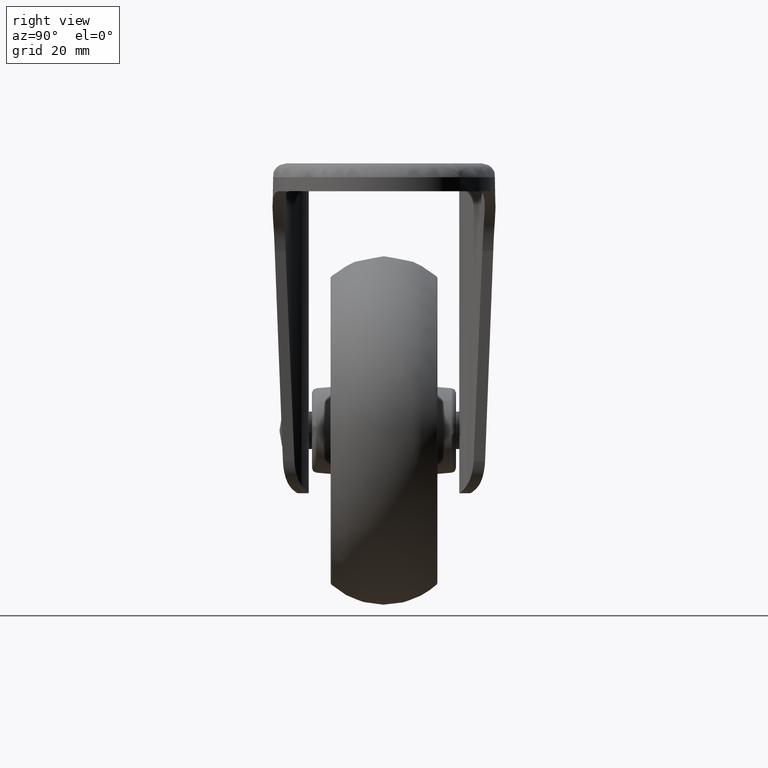
[diagram: clean part render]
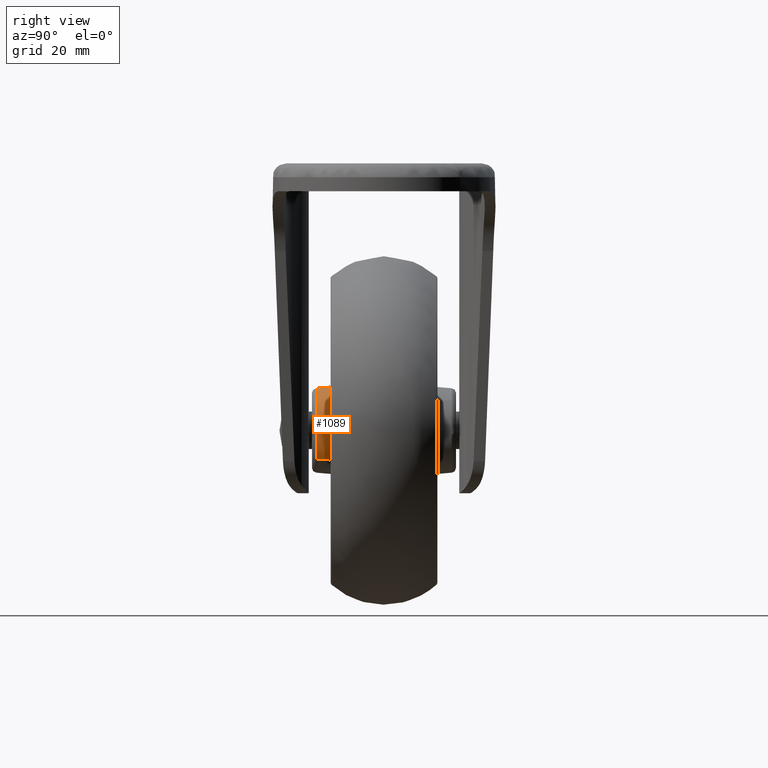
[diagram: same view with one face highlighted and labeled with its STEP entity id]
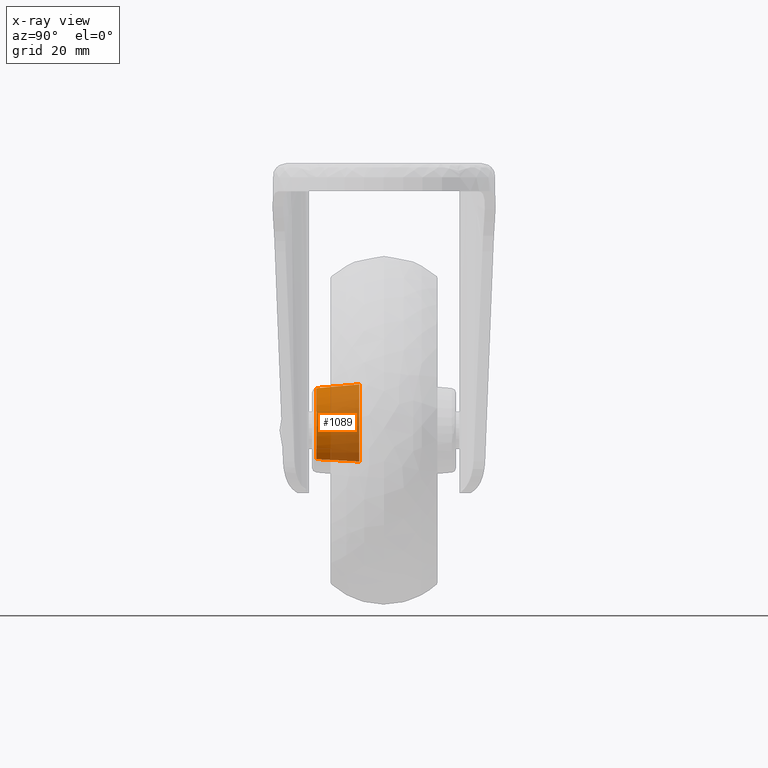
[diagram: x-ray of the same camera — body ghosted, the highlighted face saturated]
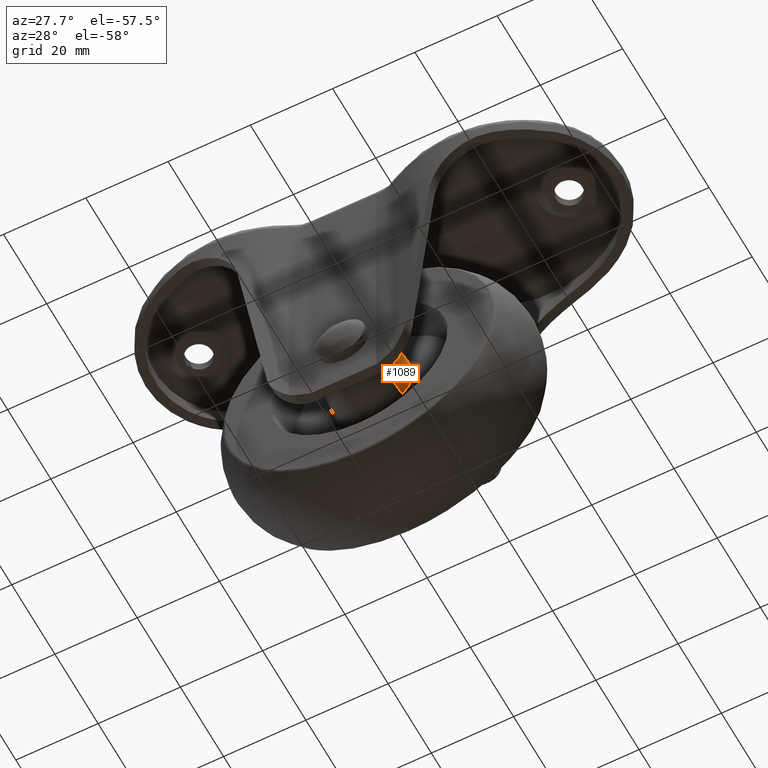
[diagram: same view with one face highlighted and labeled with its STEP entity id]
A machine part, right view. The second image highlights one B-rep face of the part: STEP entity #1089.
The next image is the same camera in x-ray: the body ghosted, the highlighted face saturated — about 68% of this face is hidden behind the body in this view.
A second angle (auxiliary view) of the same face is appended — the face is thin or edge-on in the first view.
In plain terms, the highlighted face is a freeform B-spline surface patch.
Its self-contained STEP definition (entity closure, byte-faithful):
#864=CARTESIAN_POINT('',(7.259190657776879,-5.325691776922936,-64.217064334960014));
#865=VERTEX_POINT('',#864);
#879=CARTESIAN_POINT('',(6.664463985439182,-14.587158095202140,-63.666752859098459));
#880=VERTEX_POINT('',#879);
#881=CARTESIAN_POINT('',(6.664463985439182,-14.587158095202140,-63.666752859098459));
#882=CARTESIAN_POINT('',(7.259190657776879,-5.325691776922936,-64.217064334960014));
#883=QUASI_UNIFORM_CURVE('',1,(#881,#882),.UNSPECIFIED.,.F.,.U.);
#884=EDGE_CURVE('',#880,#865,#883,.T.);
#916=CARTESIAN_POINT('',(-7.006246043255668,-14.587155742747161,-51.724496458551073));
#917=VERTEX_POINT('',#916);
#933=CARTESIAN_POINT('',(-7.631472763627508,-5.325688554344843,-51.209099323563500));
#934=VERTEX_POINT('',#933);
#935=CARTESIAN_POINT('',(-7.006246043255668,-14.587155742747161,-51.724496458551073));
#936=CARTESIAN_POINT('',(-7.631472763627508,-5.325688554344843,-51.209099323563500));
#937=QUASI_UNIFORM_CURVE('',1,(#935,#936),.UNSPECIFIED.,.F.,.U.);
#938=EDGE_CURVE('',#917,#934,#937,.T.);
#973=CARTESIAN_POINT('',(-6.990615326973982,-14.818693137539780,-51.737381426721882));
#974=CARTESIAN_POINT('',(-1.227996753695859,-14.818693137539785,-44.746766099747894));
#975=CARTESIAN_POINT('',(5.762618573278123,-14.818693137539780,-50.509384673026020));
#976=CARTESIAN_POINT('',(12.753233900252106,-14.818693137539785,-56.272003246304145));
#977=CARTESIAN_POINT('',(6.990615326973982,-14.818693137539780,-63.262618573278132));
#978=CARTESIAN_POINT('',(6.825691659195152,-14.818693137539784,-63.462686980564648));
#979=CARTESIAN_POINT('',(6.649595570090709,-14.818693137539785,-63.652995548921155));
#980=CARTESIAN_POINT('',(-7.647494199673849,-5.088363437862700,-51.195892270880599));
#981=CARTESIAN_POINT('',(-1.343386470554447,-5.088363437862700,-43.548398071206748));
#982=CARTESIAN_POINT('',(6.304107729119402,-5.088363437862700,-49.852505800326149));
#983=CARTESIAN_POINT('',(13.951601928793252,-5.088363437862700,-56.156613529445551));
#984=CARTESIAN_POINT('',(7.647494199673849,-5.088363437862700,-63.804107729119401));
#985=CARTESIAN_POINT('',(7.467073344894317,-5.088363437862700,-64.022975727528333));
#986=CARTESIAN_POINT('',(7.274430243103962,-5.088363437862700,-64.231166795779359));
#994=(BOUNDED_SURFACE()B_SPLINE_SURFACE(2,1,((#973,#980),(#974,#981),(#975,#982),(#976,#983),(#977,#984),(#978,#985),(#979,#986)),.UNSPECIFIED.,.F.,.F.,.U.)B_SPLINE_SURFACE_WITH_KNOTS((3,2,2,3),(2,2),(0.0,16.420917030751511,32.841834061503022,33.498670742733083),(0.0,9.767497961285228),.UNSPECIFIED.)GEOMETRIC_REPRESENTATION_ITEM()RATIONAL_B_SPLINE_SURFACE(((1.0,1.0),(0.707106781186548,0.707106781186548),(1.0,1.0),(0.707106781186548,0.707106781186548),(1.0,1.0),(0.988284271247462,0.988284271247462),(0.977505800795127,0.977505800795127)))REPRESENTATION_ITEM('')SURFACE());
#995=CARTESIAN_POINT('',(9.840201764959769,-5.325688552488970,-56.507408900466999));
#996=VERTEX_POINT('',#995);
#997=CARTESIAN_POINT('',(7.259190657776879,-5.325691776922936,-64.217064334960014));
#998=CARTESIAN_POINT('',(9.890136781027710,-5.325690377169579,-61.373777840226850));
#999=CARTESIAN_POINT('',(9.890136874526629,-5.325688921144161,-57.499999978204997));
#1000=CARTESIAN_POINT('',(9.890136886535714,-5.325688734130912,-57.002448374574421));
#1001=CARTESIAN_POINT('',(9.840201764959769,-5.325688552488970,-56.507408900466999));
#1009=(BOUNDED_CURVE()B_SPLINE_CURVE(2,(#997,#998,#999,#1000,#1001),.UNSPECIFIED.,.F.,.U.)B_SPLINE_CURVE_WITH_KNOTS((3,2,3),(0.630850623008820,0.750000000000000,0.767423441092920),.UNSPECIFIED.)CURVE()GEOMETRIC_REPRESENTATION_ITEM()RATIONAL_B_SPLINE_CURVE((0.853874212137361,0.860407821813743,1.0,0.979587169021952,0.962019632108591))REPRESENTATION_ITEM(''));
#1010=EDGE_CURVE('',#865,#996,#1009,.T.);
#1011=ORIENTED_EDGE('',*,*,#1010,.T.);
#1012=CARTESIAN_POINT('',(0.0,-5.325688554345300,-47.609863101919323));
#1013=VERTEX_POINT('',#1012);
#1014=CARTESIAN_POINT('',(9.840201764959769,-5.325688552488970,-56.507408900467006));
#1015=CARTESIAN_POINT('',(8.942697325245396,-5.325688554345301,-47.609863101919323));
#1016=CARTESIAN_POINT('',(0.0,-5.325688554345300,-47.609863101919323));
#1024=(BOUNDED_CURVE()B_SPLINE_CURVE(2,(#1014,#1015,#1016),.UNSPECIFIED.,.F.,.U.)B_SPLINE_CURVE_WITH_KNOTS((3,3),(0.767423441092921,1.0),.UNSPECIFIED.)CURVE()GEOMETRIC_REPRESENTATION_ITEM()RATIONAL_B_SPLINE_CURVE((0.962019632108589,0.727519612164596,1.0))REPRESENTATION_ITEM(''));
#1025=EDGE_CURVE('',#996,#1013,#1024,.T.);
#1026=ORIENTED_EDGE('',*,*,#1025,.T.);
#1027=CARTESIAN_POINT('',(0.0,-5.325688554345300,-47.609863101919323));
#1028=CARTESIAN_POINT('',(-4.664491384970907,-5.325688554345299,-47.609863101919316));
#1029=CARTESIAN_POINT('',(-7.631472763627508,-5.325688554344843,-51.209099323563500));
#1037=(BOUNDED_CURVE()B_SPLINE_CURVE(2,(#1027,#1028,#1029),.UNSPECIFIED.,.F.,.U.)B_SPLINE_CURVE_WITH_KNOTS((3,3),(0.0,0.139495374140380),.UNSPECIFIED.)CURVE()GEOMETRIC_REPRESENTATION_ITEM()RATIONAL_B_SPLINE_CURVE((1.0,0.836571003433749,0.855522719038667))REPRESENTATION_ITEM(''));
#1038=EDGE_CURVE('',#1013,#934,#1037,.T.);
#1039=ORIENTED_EDGE('',*,*,#1038,.T.);
#1040=ORIENTED_EDGE('',*,*,#938,.F.);
#1041=CARTESIAN_POINT('',(0.0,-14.587155742747660,-48.420136301908272));
#1042=VERTEX_POINT('',#1041);
#1043=CARTESIAN_POINT('',(-7.006246043255668,-14.587155742747166,-51.724496458551080));
#1044=CARTESIAN_POINT('',(-4.282341734286122,-14.587155742747662,-48.420136301908279));
#1045=CARTESIAN_POINT('',(0.0,-14.587155742747660,-48.420136301908272));
#1053=(BOUNDED_CURVE()B_SPLINE_CURVE(2,(#1043,#1044,#1045),.UNSPECIFIED.,.F.,.U.)B_SPLINE_CURVE_WITH_KNOTS((3,3),(0.860504625859634,1.0),.UNSPECIFIED.)CURVE()GEOMETRIC_REPRESENTATION_ITEM()RATIONAL_B_SPLINE_CURVE((0.855522719038663,0.836571003433765,1.0))REPRESENTATION_ITEM(''));
#1054=EDGE_CURVE('',#917,#1042,#1053,.T.);
#1055=ORIENTED_EDGE('',*,*,#1054,.T.);
#1056=CARTESIAN_POINT('',(9.034019620450575,-14.587155742947401,-56.588729308645974));
#1057=VERTEX_POINT('',#1056);
#1058=CARTESIAN_POINT('',(0.0,-14.587155742747660,-48.420136301908272));
#1059=CARTESIAN_POINT('',(8.210045386475020,-14.587155742747665,-48.420136301908265));
#1060=CARTESIAN_POINT('',(9.034019620450575,-14.587155742947402,-56.588729308645981));
#1068=(BOUNDED_CURVE()B_SPLINE_CURVE(2,(#1058,#1059,#1060),.UNSPECIFIED.,.F.,.U.)B_SPLINE_CURVE_WITH_KNOTS((3,3),(0.0,0.232576558917865),.UNSPECIFIED.)CURVE()GEOMETRIC_REPRESENTATION_ITEM()RATIONAL_B_SPLINE_CURVE((1.0,0.727519612151959,0.962019632130339))REPRESENTATION_ITEM(''));
#1069=EDGE_CURVE('',#1042,#1057,#1068,.T.);
#1070=ORIENTED_EDGE('',*,*,#1069,.T.);
#1071=CARTESIAN_POINT('',(9.034019620450575,-14.587155742947401,-56.588729308645974));
#1072=CARTESIAN_POINT('',(9.079863689664007,-14.587155873989637,-57.043211487822916));
#1073=CARTESIAN_POINT('',(9.079863680897473,-14.587156010507730,-57.499999984089833));
#1074=CARTESIAN_POINT('',(9.079863612644054,-14.587157073394001,-61.056409396008171));
#1075=CARTESIAN_POINT('',(6.664463985439182,-14.587158095202138,-63.666752859098459));
#1083=(BOUNDED_CURVE()B_SPLINE_CURVE(2,(#1071,#1072,#1073,#1074,#1075),.UNSPECIFIED.,.F.,.U.)B_SPLINE_CURVE_WITH_KNOTS((3,2,3),(0.232576558917865,0.250000000000000,0.369149379336628),.UNSPECIFIED.)CURVE()GEOMETRIC_REPRESENTATION_ITEM()RATIONAL_B_SPLINE_CURVE((0.962019632130340,0.979587169034588,1.0,0.860407819065879,0.853874211880133))REPRESENTATION_ITEM(''));
#1084=EDGE_CURVE('',#1057,#880,#1083,.T.);
#1085=ORIENTED_EDGE('',*,*,#1084,.T.);
#1086=ORIENTED_EDGE('',*,*,#884,.T.);
#1087=EDGE_LOOP('',(#1011,#1026,#1039,#1040,#1055,#1070,#1085,#1086));
#1088=FACE_OUTER_BOUND('',#1087,.T.);
#1089=ADVANCED_FACE('',(#1088),#994,.T.);